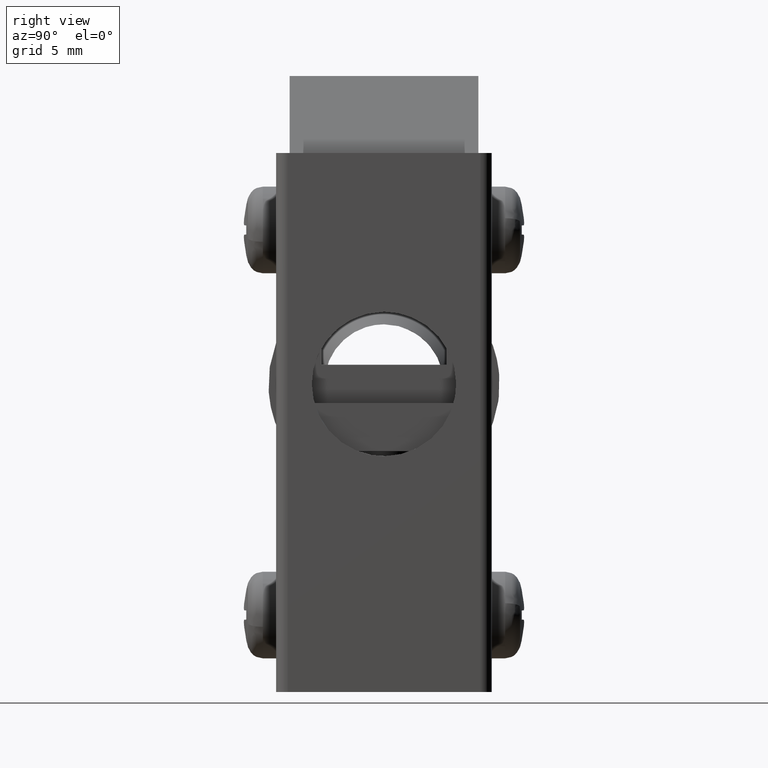
[diagram: clean part render]
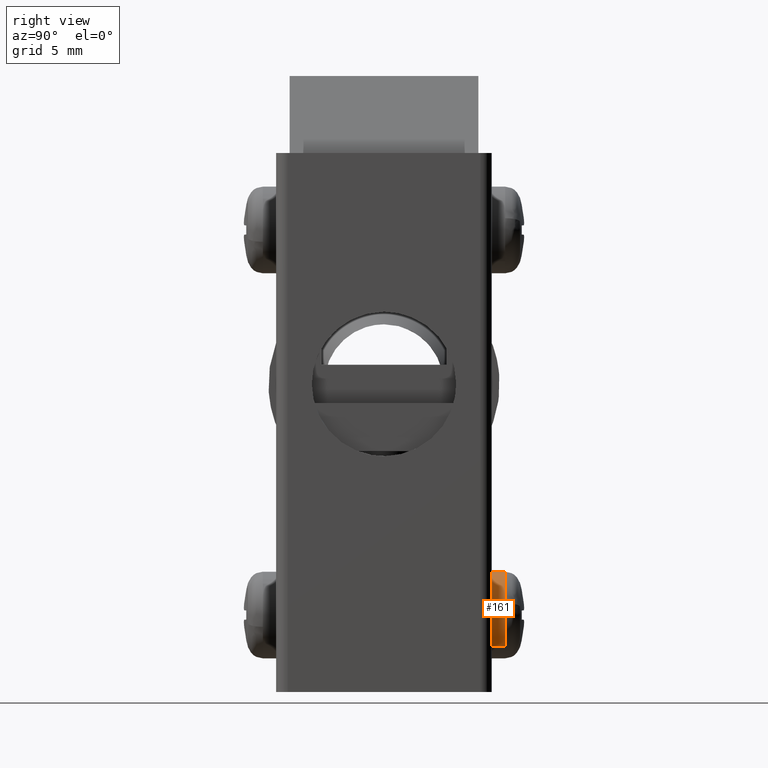
[diagram: same view with one face highlighted and labeled with its STEP entity id]
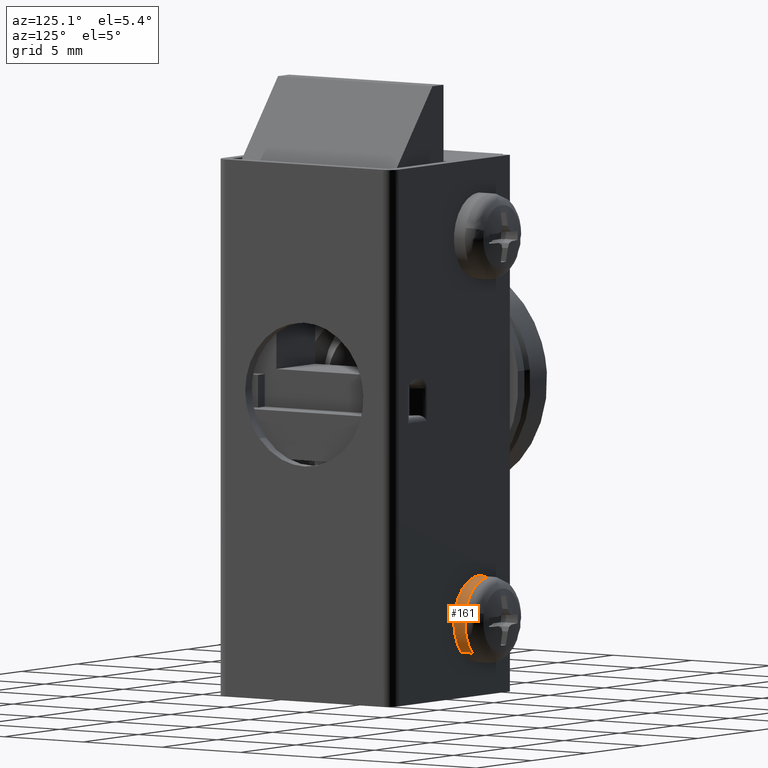
[diagram: same view with one face highlighted and labeled with its STEP entity id]
A machine part, right view. The second image highlights one B-rep face of the part: STEP entity #161.
A second angle (auxiliary view) of the same face is appended — the face is thin or edge-on in the first view.
In plain terms, the highlighted face is a freeform B-spline surface patch.
Its self-contained STEP definition (entity closure, byte-faithful):
#44=CARTESIAN_POINT('',(-6.240694394128782,-6.311106882206210,25.622066527389830));
#45=CARTESIAN_POINT('',(-6.146734845677812,-6.311106882206209,25.531743210388559));
#46=CARTESIAN_POINT('',(-6.063832844814289,-6.311106882206209,25.431175041507711));
#47=CARTESIAN_POINT('',(-4.632657803306583,-6.311106882206210,23.695020886322133));
#48=CARTESIAN_POINT('',(-6.368811958492161,-6.311106882206209,22.263845844814419));
#49=CARTESIAN_POINT('',(-8.104966113677742,-6.311106882206210,20.832670803306716));
#50=CARTESIAN_POINT('',(-9.536141155185449,-6.311106882206209,22.568824958492289));
#51=CARTESIAN_POINT('',(-6.240694394128782,-5.582228477944938,25.622066527389830));
#52=CARTESIAN_POINT('',(-6.146734845677812,-5.582228477944938,25.531743210388559));
#53=CARTESIAN_POINT('',(-6.063832844814289,-5.582228477944937,25.431175041507711));
#54=CARTESIAN_POINT('',(-4.632657803306583,-5.582228477944937,23.695020886322133));
#55=CARTESIAN_POINT('',(-6.368811958492161,-5.582228477944937,22.263845844814419));
#56=CARTESIAN_POINT('',(-8.104966113677742,-5.582228477944937,20.832670803306716));
#57=CARTESIAN_POINT('',(-9.536141155185449,-5.582228477944937,22.568824958492289));
#65=(BOUNDED_SURFACE()B_SPLINE_SURFACE(2,1,((#44,#51),(#45,#52),(#46,#53),(#47,#54),(#48,#55),(#49,#56),(#50,#57)),.UNSPECIFIED.,.F.,.F.,.U.)B_SPLINE_SURFACE_WITH_KNOTS((3,2,2,3),(2,2),(0.0,0.298233566086133,4.026153142162797,7.754072718239461),(0.0,1.0),.UNSPECIFIED.)GEOMETRIC_REPRESENTATION_ITEM()RATIONAL_B_SPLINE_SURFACE(((0.956886118190660,0.956886118190660),(0.976568542494924,0.976568542494924),(1.0,1.0),(0.707106781186548,0.707106781186548),(1.0,1.0),(0.707106781186548,0.707106781186548),(1.0,1.0)))REPRESENTATION_ITEM('')SURFACE());
#66=CARTESIAN_POINT('',(-6.240695038950468,-6.293762958131910,25.622066106918041));
#67=VERTEX_POINT('',#66);
#68=CARTESIAN_POINT('',(-5.635427625020865,-6.293762958249960,23.385858963917901));
#69=VERTEX_POINT('',#68);
#70=CARTESIAN_POINT('',(-6.240695038950468,-6.293762958131910,25.622066106918044));
#71=CARTESIAN_POINT('',(-5.549989999999760,-6.293762958112199,24.958090494951374));
#72=CARTESIAN_POINT('',(-5.549989999999760,-6.293762958112200,24.0));
#73=CARTESIAN_POINT('',(-5.549989999999760,-6.293762958112200,23.686986557324435));
#74=CARTESIAN_POINT('',(-5.635427625020865,-6.293762958249962,23.385858963917901));
#82=(BOUNDED_CURVE()B_SPLINE_CURVE(2,(#70,#71,#72,#73,#74),.UNSPECIFIED.,.F.,.U.)B_SPLINE_CURVE_WITH_KNOTS((3,2,3),(0.122022968753312,0.250000000000000,0.296505535788620),.UNSPECIFIED.)CURVE()GEOMETRIC_REPRESENTATION_ITEM()RATIONAL_B_SPLINE_CURVE((0.853636457125645,0.850065581535871,1.0,0.945515375720908,0.911301444596542))REPRESENTATION_ITEM(''));
#83=EDGE_CURVE('',#67,#69,#82,.T.);
#84=ORIENTED_EDGE('',*,*,#83,.T.);
#85=CARTESIAN_POINT('',(-7.799986999999869,-6.293762958112200,21.750002999999889));
#86=VERTEX_POINT('',#85);
#87=CARTESIAN_POINT('',(-5.635427625020865,-6.293762958249962,23.385858963917901));
#88=CARTESIAN_POINT('',(-6.099561937166341,-6.293762958112200,21.750002999999886));
#89=CARTESIAN_POINT('',(-7.799986999999869,-6.293762958112200,21.750002999999889));
#97=(BOUNDED_CURVE()B_SPLINE_CURVE(2,(#87,#88,#89),.UNSPECIFIED.,.F.,.U.)B_SPLINE_CURVE_WITH_KNOTS((3,3),(0.296505535788620,0.500000000000000),.UNSPECIFIED.)CURVE()GEOMETRIC_REPRESENTATION_ITEM()RATIONAL_B_SPLINE_CURVE((0.911301444596542,0.761591405465640,1.0))REPRESENTATION_ITEM(''));
#98=EDGE_CURVE('',#69,#86,#97,.T.);
#99=ORIENTED_EDGE('',*,*,#98,.T.);
#100=CARTESIAN_POINT('',(-9.536141799215363,-6.293762958155092,22.568826918865899));
#101=VERTEX_POINT('',#100);
#102=CARTESIAN_POINT('',(-7.799986999999869,-6.293762958112200,21.750002999999889));
#103=CARTESIAN_POINT('',(-8.861155652302795,-6.293762958112200,21.750002999999897));
#104=CARTESIAN_POINT('',(-9.536141799215363,-6.293762958155092,22.568826918865902));
#112=(BOUNDED_CURVE()B_SPLINE_CURVE(2,(#102,#103,#104),.UNSPECIFIED.,.F.,.U.)B_SPLINE_CURVE_WITH_KNOTS((3,3),(0.500000000000000,0.639495503352051),.UNSPECIFIED.)CURVE()GEOMETRIC_REPRESENTATION_ITEM()RATIONAL_B_SPLINE_CURVE((1.0,0.836570852052860,0.855522754147985))REPRESENTATION_ITEM(''));
#113=EDGE_CURVE('',#86,#101,#112,.T.);
#114=ORIENTED_EDGE('',*,*,#113,.T.);
#115=CARTESIAN_POINT('',(-9.536142944958765,-5.600006000000091,22.568825950563198));
#116=VERTEX_POINT('',#115);
#117=CARTESIAN_POINT('',(-9.536141799215363,-6.293762958155092,22.568826918865899));
#118=CARTESIAN_POINT('',(-9.536142944958765,-5.600006000000091,22.568825950563198));
#119=QUASI_UNIFORM_CURVE('',1,(#117,#118),.UNSPECIFIED.,.F.,.U.);
#120=EDGE_CURVE('',#101,#116,#119,.T.);
#121=ORIENTED_EDGE('',*,*,#120,.T.);
#122=CARTESIAN_POINT('',(-7.799986999999869,-5.600006000000090,21.749999999999890));
#123=VERTEX_POINT('',#122);
#124=CARTESIAN_POINT('',(-7.799986999999869,-5.600006000000090,21.749999999999890));
#125=CARTESIAN_POINT('',(-8.861157055958959,-5.600006000000090,21.749999999999883));
#126=CARTESIAN_POINT('',(-9.536142944958765,-5.600006000000091,22.568825950563202));
#134=(BOUNDED_CURVE()B_SPLINE_CURVE(2,(#124,#125,#126),.UNSPECIFIED.,.F.,.U.)B_SPLINE_CURVE_WITH_KNOTS((3,3),(0.500000000000000,0.639495502116279),.UNSPECIFIED.)CURVE()GEOMETRIC_REPRESENTATION_ITEM()RATIONAL_B_SPLINE_CURVE((1.0,0.836570853500657,0.855522753812200))REPRESENTATION_ITEM(''));
#135=EDGE_CURVE('',#123,#116,#134,.T.);
#136=ORIENTED_EDGE('',*,*,#135,.F.);
#137=CARTESIAN_POINT('',(-6.240694005453592,-5.600006000000089,25.622067194095219));
#138=VERTEX_POINT('',#137);
#139=CARTESIAN_POINT('',(-6.240694005453592,-5.600006000000088,25.622067194095216));
#140=CARTESIAN_POINT('',(-5.549986999999755,-5.600006000000090,24.958091782291380));
#141=CARTESIAN_POINT('',(-5.549986999999755,-5.600006000000090,24.0));
#142=CARTESIAN_POINT('',(-5.549986999999755,-5.600006000000091,21.749999999999886));
#143=CARTESIAN_POINT('',(-7.799986999999869,-5.600006000000090,21.749999999999890));
#151=(BOUNDED_CURVE()B_SPLINE_CURVE(2,(#139,#140,#141,#142,#143),.UNSPECIFIED.,.F.,.U.)B_SPLINE_CURVE_WITH_KNOTS((3,2,3),(0.122022967630972,0.250000000000000,0.500000000000000),.UNSPECIFIED.)CURVE()GEOMETRIC_REPRESENTATION_ITEM()RATIONAL_B_SPLINE_CURVE((0.853636457188277,0.850065580220968,1.0,0.707106781186548,1.0))REPRESENTATION_ITEM(''));
#152=EDGE_CURVE('',#138,#123,#151,.T.);
#153=ORIENTED_EDGE('',*,*,#152,.F.);
#154=CARTESIAN_POINT('',(-6.240695038950468,-6.293762958131910,25.622066106918041));
#155=CARTESIAN_POINT('',(-6.240694005453592,-5.600006000000089,25.622067194095219));
#156=QUASI_UNIFORM_CURVE('',1,(#154,#155),.UNSPECIFIED.,.F.,.U.);
#157=EDGE_CURVE('',#67,#138,#156,.T.);
#158=ORIENTED_EDGE('',*,*,#157,.F.);
#159=EDGE_LOOP('',(#84,#99,#114,#121,#136,#153,#158));
#160=FACE_OUTER_BOUND('',#159,.T.);
#161=ADVANCED_FACE('',(#160),#65,.T.);